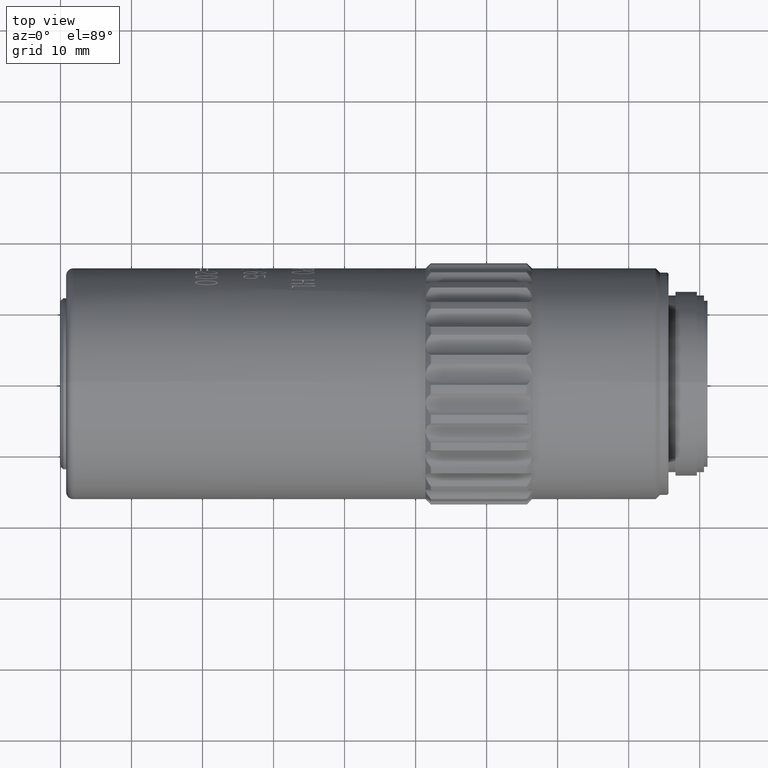
[diagram: clean part render]
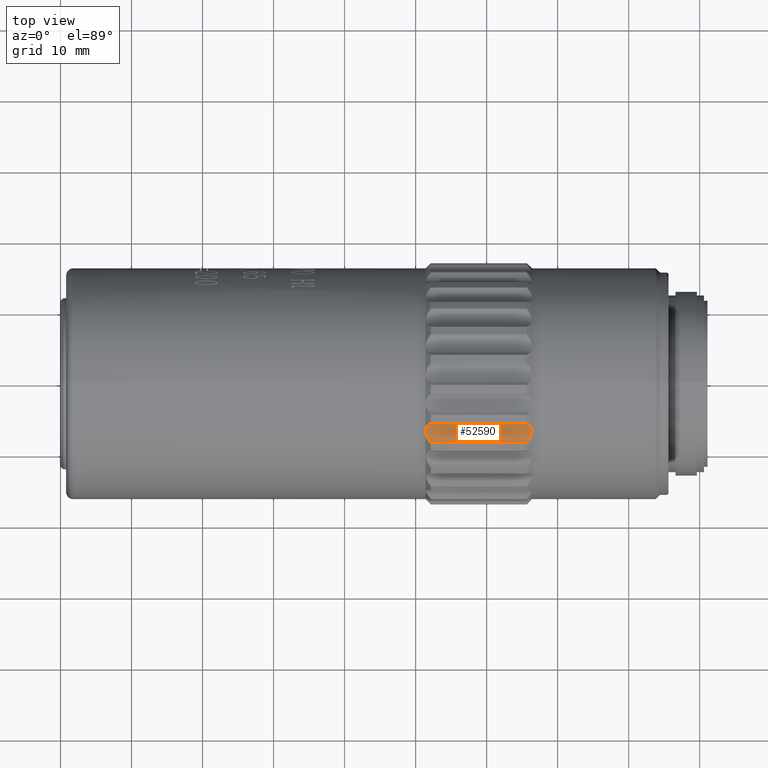
[diagram: same view with one face highlighted and labeled with its STEP entity id]
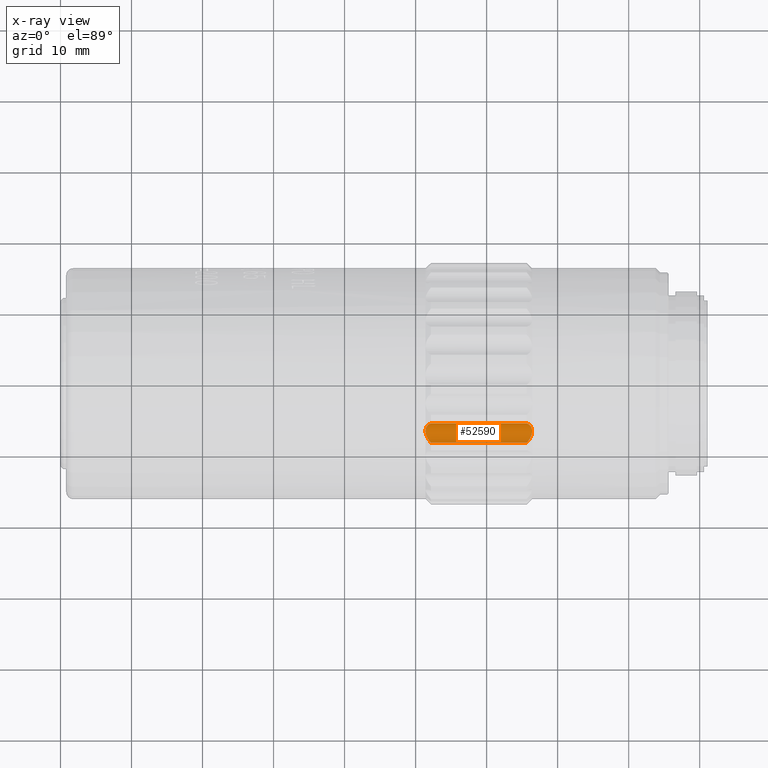
[diagram: x-ray of the same camera — body ghosted, the highlighted face saturated]
A machine part, top view. The second image highlights one B-rep face of the part: STEP entity #52590.
The next image is the same camera in x-ray: the body ghosted, the highlighted face saturated — about 0% of this face is hidden behind the body in this view.
In plain terms, the highlighted cylindrical surface (edge-blend (fillet) strip) has radius 2 mm, axis along (-1, -0, -0).
Its self-contained STEP definition (entity closure, byte-faithful):
#497 = VERTEX_POINT ( 'NONE', #28689 ) ;
#639 = EDGE_CURVE ( 'NONE', #497, #2212, #13411, .T. ) ;
#1072 = CARTESIAN_POINT ( 'NONE',  ( 52.05006487059915798, -8.458583265614855407, 14.63112679268381733 ) ) ;
#1200 = DIRECTION ( 'NONE',  ( -1.000000000000000000, -0.000000000000000000, -0.000000000000000000 ) ) ;
#1265 = CARTESIAN_POINT ( 'NONE',  ( 51.39999999999999147, -6.918913487930907102, 14.70343960257353721 ) ) ;
#1795 = EDGE_CURVE ( 'NONE', #50314, #19352, #29158, .T. ) ;
#2035 = ORIENTED_EDGE ( 'NONE', *, *, #639, .T. ) ;
#2095 = VECTOR ( 'NONE', #43572, 1000.000000000000000 ) ;
#2099 = CARTESIAN_POINT ( 'NONE',  ( 51.42166185667379352, -6.640636826721858732, 14.85566907911072931 ) ) ;
#2212 = VERTEX_POINT ( 'NONE', #34309 ) ;
#2400 = CARTESIAN_POINT ( 'NONE',  ( 65.84987124278704584, -8.345267047978776276, 14.58156652022840483 ) ) ;
#2773 = EDGE_CURVE ( 'NONE', #497, #5880, #29050, .T. ) ;
#3793 = CARTESIAN_POINT ( 'NONE',  ( 66.39999999999884039, -6.775413515456280678, 14.77096556397634508 ) ) ;
#5461 = CYLINDRICAL_SURFACE ( 'NONE', #7653, 1.999999999999998224 ) ;
#5528 = CARTESIAN_POINT ( 'NONE',  ( 51.50172192507041302, -6.400841229027958157, 15.04759193858381927 ) ) ;
#5880 = VERTEX_POINT ( 'NONE', #29990 ) ;
#7653 = AXIS2_PLACEMENT_3D ( 'NONE', #22725, #1200, #18478 ) ;
#8335 = ORIENTED_EDGE ( 'NONE', *, *, #21057, .T. ) ;
#8661 = CARTESIAN_POINT ( 'NONE',  ( 51.95560827549618210, -5.927247284132728389, 15.72595273122117554 ) ) ;
#9697 = FACE_OUTER_BOUND ( 'NONE', #53148, .T. ) ;
#9931 = ORIENTED_EDGE ( 'NONE', *, *, #41961, .F. ) ;
#11742 = CARTESIAN_POINT ( 'NONE',  ( 65.65000000000003411, -8.571898367523139939, 14.68068657716164616 ) ) ;
#12909 = CARTESIAN_POINT ( 'NONE',  ( 52.05006487059915798, -5.881773057701531471, 15.84368163599061319 ) ) ;
#13411 = LINE ( 'NONE', #18760, #14697 ) ;
#14170 = CARTESIAN_POINT ( 'NONE',  ( 65.84439172450387900, -5.927247284132739935, 15.72595273122114357 ) ) ;
#14697 = VECTOR ( 'NONE', #36038, 1000.000000000000000 ) ;
#14844 = CARTESIAN_POINT ( 'NONE',  ( 51.69838355598302826, -6.119052039338702009, 15.37600541401860710 ) ) ;
#14896 = ORIENTED_EDGE ( 'NONE', *, *, #2773, .F. ) ;
#16537 = CARTESIAN_POINT ( 'NONE',  ( 66.37833814332623206, -6.640636826721982189, 14.85566907911064582 ) ) ;
#17390 = CARTESIAN_POINT ( 'NONE',  ( 66.39999999999882618, -6.918913487931414252, 14.70343960257462435 ) ) ;
#18478 = DIRECTION ( 'NONE',  ( 0.000000000000000000, 0.000000000000000000, 1.000000000000000000 ) ) ;
#18630 = CARTESIAN_POINT ( 'NONE',  ( 51.55959058457564481, -7.663070517622158739, 14.51093916435042175 ) ) ;
#18760 = CARTESIAN_POINT ( 'NONE',  ( 58.90000000000000568, -5.847729763593631169, 15.96258301817037406 ) ) ;
#19352 = VERTEX_POINT ( 'NONE', #22240 ) ;
#20835 = CARTESIAN_POINT ( 'NONE',  ( 52.14999999999998437, -8.571898367523139939, 14.68068657716164616 ) ) ;
#21057 = EDGE_CURVE ( 'NONE', #50314, #32073, #26267, .T. ) ;
#21347 = CARTESIAN_POINT ( 'NONE',  ( 66.10161644401703995, -6.119052039338740201, 15.37600541401855381 ) ) ;
#22240 = CARTESIAN_POINT ( 'NONE',  ( 51.39999999999999147, -6.918913487930907102, 14.70343960257353721 ) ) ;
#22323 = CARTESIAN_POINT ( 'NONE',  ( 51.39999999999999147, -6.918913487930907102, 14.70343960257353721 ) ) ;
#22669 = CARTESIAN_POINT ( 'NONE',  ( 66.29827807492964098, -6.400841229028043422, 15.04759193858373401 ) ) ;
#22725 = CARTESIAN_POINT ( 'NONE',  ( 91.10099999999999909, -7.770472071061376163, 16.51309370750675143 ) ) ;
#23904 = CARTESIAN_POINT ( 'NONE',  ( 66.29856986107647288, -7.513456175735503173, 14.52374636183786905 ) ) ;
#24216 = B_SPLINE_CURVE_WITH_KNOTS ( 'NONE', 3,
 ( #51708, #12909, #8661, #25911, #14844, #49670, #5528, #2099, #40077, #1265 ),
 .UNSPECIFIED., .F., .F.,
 ( 4, 2, 2, 2, 4 ),
 ( 3.147481220016407554E-07, 0.0004721481939867851652, 0.0009439816398515686342, 0.001415815085716352157, 0.001887648531581135681 ),
 .UNSPECIFIED. ) ;
#24744 = CARTESIAN_POINT ( 'NONE',  ( 66.39999999999881197, -7.062231131341800250, 14.63599943871819775 ) ) ;
#25911 = CARTESIAN_POINT ( 'NONE',  ( 51.78024158241555597, -6.045311344498576211, 15.49285403016554241 ) ) ;
#26145 = CARTESIAN_POINT ( 'NONE',  ( 65.65000000000003411, -5.847729763593631169, 15.96258301817037406 ) ) ;
#26267 = LINE ( 'NONE', #38485, #2095 ) ;
#28689 = CARTESIAN_POINT ( 'NONE',  ( 65.65000000000003411, -5.847729763593631169, 15.96258301817037406 ) ) ;
#29050 = B_SPLINE_CURVE_WITH_KNOTS ( 'NONE', 3,
 ( #26145, #34660, #14170, #38071, #21347, #55894, #22669, #16537, #3793, #17390 ),
 .UNSPECIFIED., .F., .F.,
 ( 4, 2, 2, 2, 4 ),
 ( 3.147481219677750547E-07, 0.0004721481939867958446, 0.0009439816398516239285, 0.001415815085716451904, 0.001887648531581280096 ),
 .UNSPECIFIED. ) ;
#29158 = B_SPLINE_CURVE_WITH_KNOTS ( 'NONE', 3,
 ( #52911, #1072, #35081, #31364, #44410, #18630, #43583, #30807, #48098, #22323 ),
 .UNSPECIFIED., .F., .F.,
 ( 4, 2, 2, 2, 4 ),
 ( 3.147481219586281047E-07, 0.0004721481939867419055, 0.0009439816398515251577, 0.001415815085716308356, 0.001887648531581091662 ),
 .UNSPECIFIED. ) ;
#29990 = CARTESIAN_POINT ( 'NONE',  ( 66.39999999999882618, -6.918913487931414252, 14.70343960257462435 ) ) ;
#30807 = CARTESIAN_POINT ( 'NONE',  ( 51.42166185667379352, -7.213588535185481376, 14.58605847024828961 ) ) ;
#31364 = CARTESIAN_POINT ( 'NONE',  ( 51.78024158241555597, -8.084022722148493045, 14.53350927614272692 ) ) ;
#31957 = ORIENTED_EDGE ( 'NONE', *, *, #39737, .T. ) ;
#32073 = VERTEX_POINT ( 'NONE', #51329 ) ;
#32655 = ORIENTED_EDGE ( 'NONE', *, *, #1795, .F. ) ;
#33258 = CARTESIAN_POINT ( 'NONE',  ( 66.24066348792007375, -7.662488118462067455, 14.51096058310718284 ) ) ;
#34309 = CARTESIAN_POINT ( 'NONE',  ( 52.14999999999998437, -5.847729763593631169, 15.96258301817037406 ) ) ;
#34660 = CARTESIAN_POINT ( 'NONE',  ( 65.74993512940085338, -5.881773057701534135, 15.84368163599059898 ) ) ;
#35081 = CARTESIAN_POINT ( 'NONE',  ( 51.95560827549618210, -8.338885222590009860, 14.59112205816713193 ) ) ;
#36038 = DIRECTION ( 'NONE',  ( -1.000000000000000000, -0.000000000000000000, -0.000000000000000000 ) ) ;
#36955 = CARTESIAN_POINT ( 'NONE',  ( 66.37845809732095859, -7.212903638210259594, 14.58626276659419752 ) ) ;
#38071 = CARTESIAN_POINT ( 'NONE',  ( 66.01975841758446961, -6.045311344498605521, 15.49285403016549090 ) ) ;
#38485 = CARTESIAN_POINT ( 'NONE',  ( 58.90000000000000568, -8.571898367523139939, 14.68068657716164616 ) ) ;
#39737 = EDGE_CURVE ( 'NONE', #2212, #19352, #24216, .T. ) ;
#40077 = CARTESIAN_POINT ( 'NONE',  ( 51.40000000000119229, -6.775413515456135904, 14.77096556397643035 ) ) ;
#41961 = EDGE_CURVE ( 'NONE', #5880, #32073, #47715, .T. ) ;
#43572 = DIRECTION ( 'NONE',  ( 1.000000000000000000, 0.000000000000000000, 0.000000000000000000 ) ) ;
#43583 = CARTESIAN_POINT ( 'NONE',  ( 51.50172192507041302, -7.514319106607122656, 14.52362902147517509 ) ) ;
#44410 = CARTESIAN_POINT ( 'NONE',  ( 51.69838355598302826, -7.946985228095426734, 14.51584534694751127 ) ) ;
#47715 = B_SPLINE_CURVE_WITH_KNOTS ( 'NONE', 3,
 ( #55065, #24744, #36955, #23904, #33258, #50542, #2400, #11742 ),
 .UNSPECIFIED., .F., .F.,
 ( 4, 2, 2, 4 ),
 ( 0.001887648531581280096, 0.002358882472446790536, 0.002830116413312300759, 0.003772584295043318603 ),
 .UNSPECIFIED. ) ;
#48098 = CARTESIAN_POINT ( 'NONE',  ( 51.40000000000119229, -7.062413460406715693, 14.63591364117284144 ) ) ;
#49670 = CARTESIAN_POINT ( 'NONE',  ( 51.55959058457564481, -6.296245808174428582, 15.15411805129465961 ) ) ;
#50314 = VERTEX_POINT ( 'NONE', #20835 ) ;
#50542 = CARTESIAN_POINT ( 'NONE',  ( 66.03236023278897449, -8.088780683587819098, 14.51823282149506333 ) ) ;
#51329 = CARTESIAN_POINT ( 'NONE',  ( 65.65000000000003411, -8.571898367523139939, 14.68068657716164616 ) ) ;
#51708 = CARTESIAN_POINT ( 'NONE',  ( 52.14999999999998437, -5.847729763593631169, 15.96258301817037406 ) ) ;
#52590 = ADVANCED_FACE ( 'NONE', ( #9697 ), #5461, .F. ) ;
#52911 = CARTESIAN_POINT ( 'NONE',  ( 52.14999999999998437, -8.571898367523139939, 14.68068657716164616 ) ) ;
#53148 = EDGE_LOOP ( 'NONE', ( #2035, #31957, #32655, #8335, #9931, #14896 ) ) ;
#55065 = CARTESIAN_POINT ( 'NONE',  ( 66.39999999999882618, -6.918913487931414252, 14.70343960257462435 ) ) ;
#55894 = CARTESIAN_POINT ( 'NONE',  ( 66.24040941542442340, -6.296245808174492531, 15.15411805129458855 ) ) ;